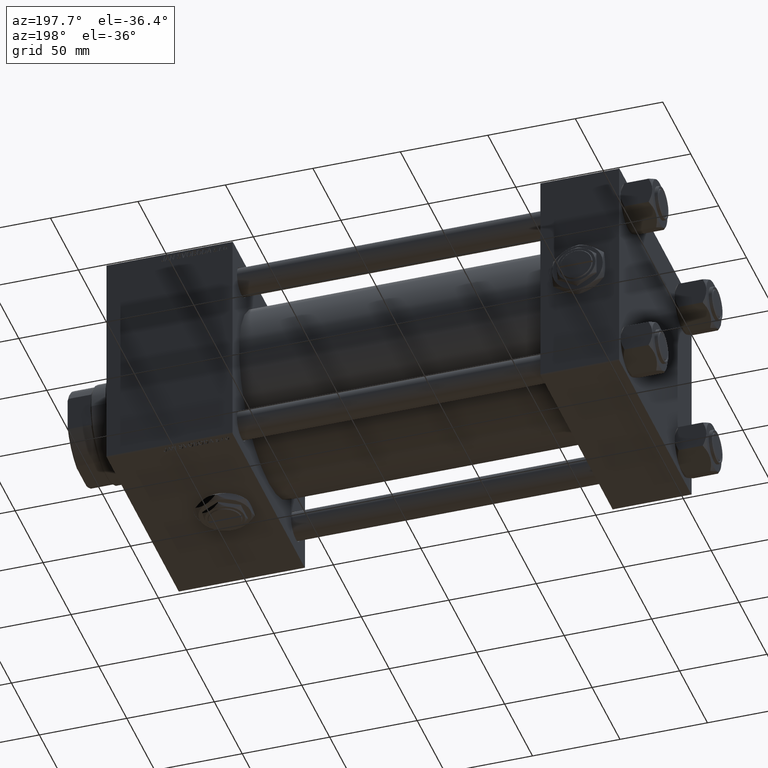
[diagram: clean part render]
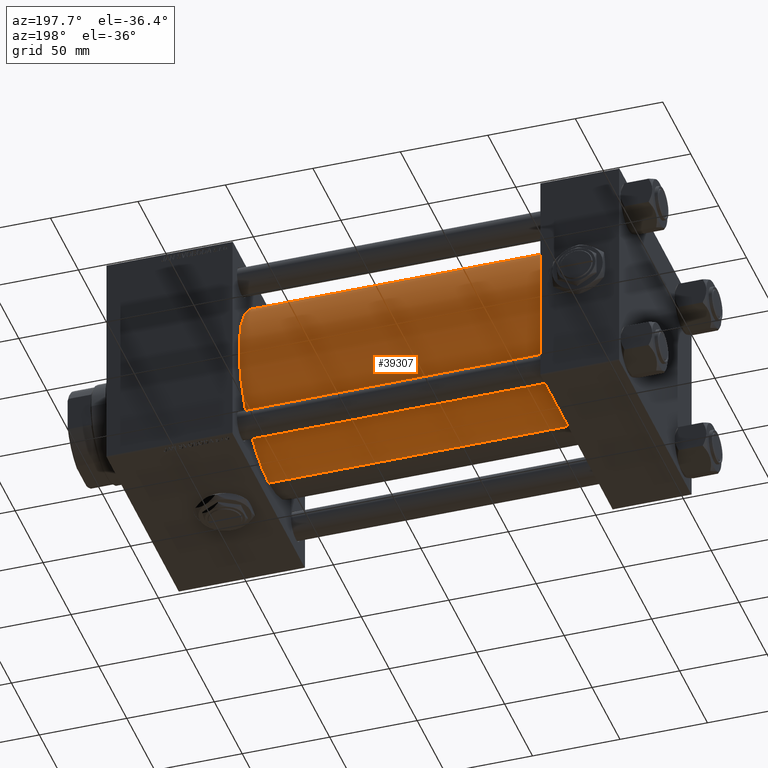
[diagram: same view with one face highlighted and labeled with its STEP entity id]
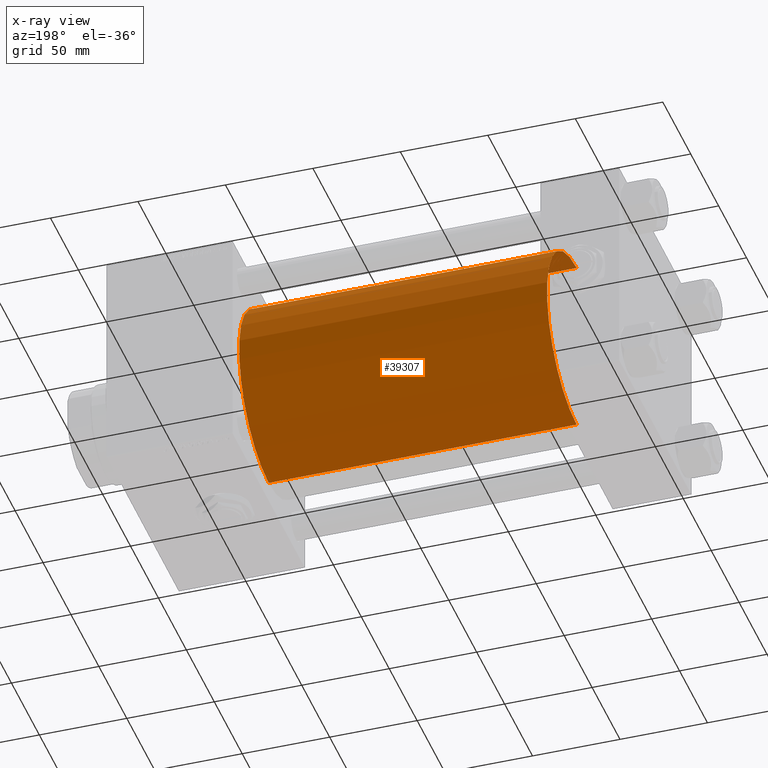
[diagram: x-ray of the same camera — body ghosted, the highlighted face saturated]
A machine part, auxiliary view. The second image highlights one B-rep face of the part: STEP entity #39307.
The next image is the same camera in x-ray: the body ghosted, the highlighted face saturated — about 1% of this face is hidden behind the body in this view.
In plain terms, the highlighted cylindrical surface (partial cylindrical patch) has radius 53 mm, axis along (-1, -0, -0).
Its self-contained STEP definition (entity closure, byte-faithful):
#221 = VECTOR ( 'NONE', #4281, 1000.000000000000000 ) ;
#1135 = LINE ( 'NONE', #17443, #34802 ) ;
#1970 = EDGE_CURVE ( 'NONE', #13829, #31674, #23003, .T. ) ;
#2219 = CYLINDRICAL_SURFACE ( 'NONE', #29857, 53.00000000000000711 ) ;
#4281 = DIRECTION ( 'NONE',  ( -1.000000000000000000, -0.000000000000000000, -0.000000000000000000 ) ) ;
#6238 = DIRECTION ( 'NONE',  ( -1.000000000000000000, -0.000000000000000000, -0.000000000000000000 ) ) ;
#7779 = LINE ( 'NONE', #24085, #221 ) ;
#9661 = EDGE_CURVE ( 'NONE', #28769, #31674, #7779, .T. ) ;
#12269 = CARTESIAN_POINT ( 'NONE',  ( 220.9999999999999716, -2.602085213965210642E-15, 0.000000000000000000 ) ) ;
#13829 = VERTEX_POINT ( 'NONE', #36073 ) ;
#17443 = CARTESIAN_POINT ( 'NONE',  ( 220.9999999999999716, 3.888542821515762466E-15, -53.00000000000000711 ) ) ;
#18469 = ORIENTED_EDGE ( 'NONE', *, *, #26631, .T. ) ;
#19325 = EDGE_LOOP ( 'NONE', ( #40848, #18469, #39379, #44106 ) ) ;
#23003 = CIRCLE ( 'NONE', #52916, 53.00000000000000711 ) ;
#24085 = CARTESIAN_POINT ( 'NONE',  ( 220.9999999999999716, -2.602085213965210642E-15, 53.00000000000000711 ) ) ;
#25832 = AXIS2_PLACEMENT_3D ( 'NONE', #12269, #37188, #44942 ) ;
#26399 = CARTESIAN_POINT ( 'NONE',  ( 220.9999999999999716, -2.602085213965210642E-15, 53.00000000000000711 ) ) ;
#26570 = FACE_OUTER_BOUND ( 'NONE', #19325, .T. ) ;
#26631 = EDGE_CURVE ( 'NONE', #28041, #13829, #1135, .T. ) ;
#28041 = VERTEX_POINT ( 'NONE', #51077 ) ;
#28769 = VERTEX_POINT ( 'NONE', #26399 ) ;
#29292 = CIRCLE ( 'NONE', #25832, 53.00000000000000711 ) ;
#29857 = AXIS2_PLACEMENT_3D ( 'NONE', #30595, #6238, #34614 ) ;
#30595 = CARTESIAN_POINT ( 'NONE',  ( 220.9999999999999716, -2.602085213965210642E-15, 0.000000000000000000 ) ) ;
#31674 = VERTEX_POINT ( 'NONE', #44521 ) ;
#31832 = CARTESIAN_POINT ( 'NONE',  ( 44.99999999999998579, -2.602085213965210642E-15, 0.000000000000000000 ) ) ;
#34614 = DIRECTION ( 'NONE',  ( 0.000000000000000000, 0.000000000000000000, 1.000000000000000000 ) ) ;
#34802 = VECTOR ( 'NONE', #42341, 1000.000000000000000 ) ;
#36073 = CARTESIAN_POINT ( 'NONE',  ( 44.99999999999998579, 3.888542821515762466E-15, -53.00000000000000711 ) ) ;
#37188 = DIRECTION ( 'NONE',  ( 1.000000000000000000, 0.000000000000000000, 0.000000000000000000 ) ) ;
#39307 = ADVANCED_FACE ( 'NONE', ( #26570 ), #2219, .T. ) ;
#39379 = ORIENTED_EDGE ( 'NONE', *, *, #1970, .T. ) ;
#40632 = DIRECTION ( 'NONE',  ( 1.000000000000000000, -0.000000000000000000, 0.000000000000000000 ) ) ;
#40848 = ORIENTED_EDGE ( 'NONE', *, *, #46985, .F. ) ;
#42341 = DIRECTION ( 'NONE',  ( -1.000000000000000000, -0.000000000000000000, -0.000000000000000000 ) ) ;
#44106 = ORIENTED_EDGE ( 'NONE', *, *, #9661, .F. ) ;
#44521 = CARTESIAN_POINT ( 'NONE',  ( 44.99999999999998579, -2.602085213965210642E-15, 53.00000000000000711 ) ) ;
#44942 = DIRECTION ( 'NONE',  ( 0.000000000000000000, 0.000000000000000000, -1.000000000000000000 ) ) ;
#45172 = DIRECTION ( 'NONE',  ( 0.000000000000000000, 0.000000000000000000, 1.000000000000000000 ) ) ;
#46985 = EDGE_CURVE ( 'NONE', #28041, #28769, #29292, .T. ) ;
#51077 = CARTESIAN_POINT ( 'NONE',  ( 220.9999999999999716, 3.888542821515762466E-15, -53.00000000000000711 ) ) ;
#52916 = AXIS2_PLACEMENT_3D ( 'NONE', #31832, #40632, #45172 ) ;